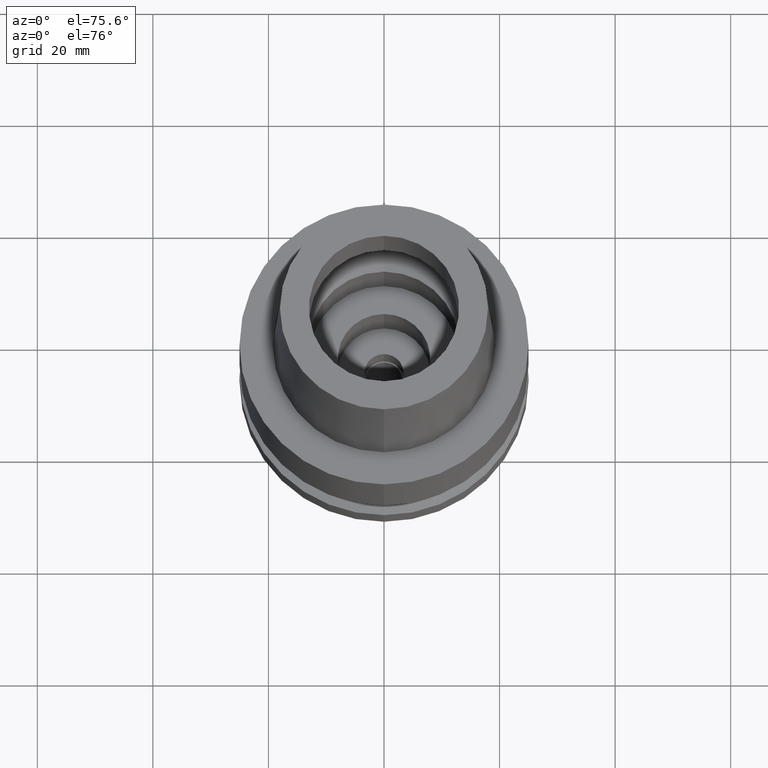
[diagram: clean part render]
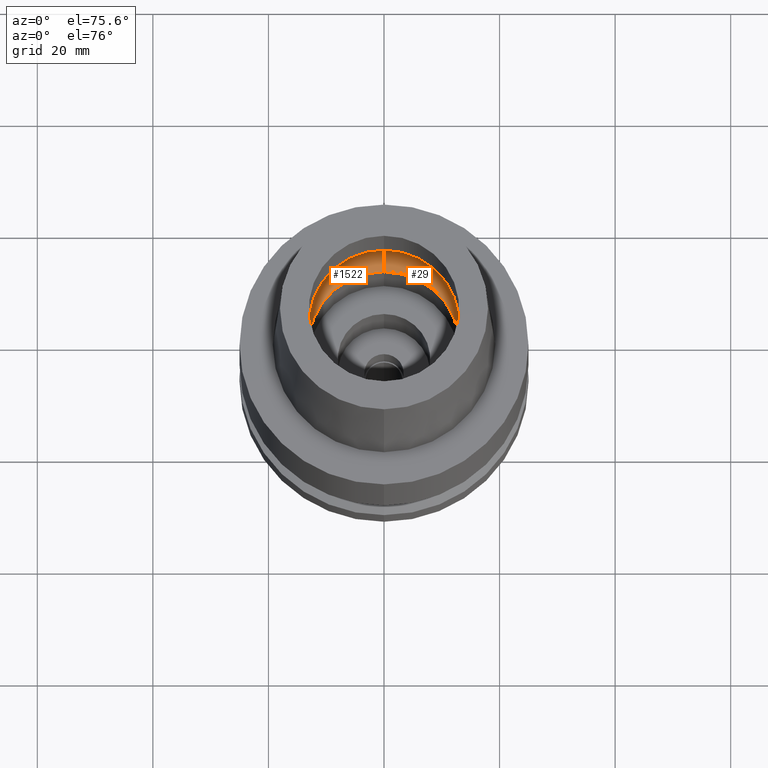
[diagram: same view with one multi-face feature highlighted, each face labeled with its STEP entity id]
A machine part, auxiliary view. The highlighted faces form ONE feature: a constant-radius fillet chain: 2 tangent blend faces with common blend radius 6 mm. The faces share edges in the B-rep.
Their STEP definitions:
[1] entity #1522 (Torus):
#5 = DIRECTION ( 'NONE',  ( 0.0000000000000000000, -0.5000000000000169864, -0.8660254037844289376 ) ) ;
#110 = CARTESIAN_POINT ( 'NONE',  ( 0.0000000000000000000, -16.00000000000000000, 5.245999999999999552 ) ) ;
#196 = EDGE_CURVE ( 'NONE', #441, #302, #563, .T. ) ;
#224 = CARTESIAN_POINT ( 'NONE',  ( 0.0000000000000000000, 0.0000000000000000000, 0.04984757729338000487 ) ) ;
#238 = AXIS2_PLACEMENT_3D ( 'NONE', #1676, #2503, #2492 ) ;
#284 = CIRCLE ( 'NONE', #547, 6.000000000000000000 ) ;
#302 = VERTEX_POINT ( 'NONE', #2594 ) ;
#306 = CARTESIAN_POINT ( 'NONE',  ( 0.0000000000000000000, 0.0000000000000000000, 5.245999999999999552 ) ) ;
#375 = ORIENTED_EDGE ( 'NONE', *, *, #196, .F. ) ;
#393 = CARTESIAN_POINT ( 'NONE',  ( 0.0000000000000000000, 13.00000000000000000, 0.04984757729338999688 ) ) ;
#441 = VERTEX_POINT ( 'NONE', #393 ) ;
#547 = AXIS2_PLACEMENT_3D ( 'NONE', #2291, #1461, #5 ) ;
#563 = CIRCLE ( 'NONE', #2049, 13.00000000000000000 ) ;
#590 = CARTESIAN_POINT ( 'NONE',  ( 0.0000000000000000000, 10.00000000000000000, 5.245999999999999552 ) ) ;
#663 = AXIS2_PLACEMENT_3D ( 'NONE', #590, #1011, #2466 ) ;
#879 = CIRCLE ( 'NONE', #663, 6.000000000000000000 ) ;
#880 = ORIENTED_EDGE ( 'NONE', *, *, #2631, .F. ) ;
#972 = CIRCLE ( 'NONE', #238, 16.00000000000000000 ) ;
#1011 = DIRECTION ( 'NONE',  ( 1.000000000000000000, 0.0000000000000000000, 0.0000000000000000000 ) ) ;
#1056 = TOROIDAL_SURFACE ( 'NONE', #2523, 10.00000000000000000, 6.000000000000000000 ) ;
#1057 = VERTEX_POINT ( 'NONE', #110 ) ;
#1461 = DIRECTION ( 'NONE',  ( -1.000000000000000000, 0.0000000000000000000, 0.0000000000000000000 ) ) ;
#1516 = FACE_OUTER_BOUND ( 'NONE', #2328, .T. ) ;
#1522 = ADVANCED_FACE ( 'NONE', ( #1516 ), #1056, .F. ) ;
#1676 = CARTESIAN_POINT ( 'NONE',  ( 0.0000000000000000000, 0.0000000000000000000, 5.245999999999999552 ) ) ;
#1942 = DIRECTION ( 'NONE',  ( 0.0000000000000000000, 1.000000000000000000, 0.0000000000000000000 ) ) ;
#2049 = AXIS2_PLACEMENT_3D ( 'NONE', #224, #2151, #1942 ) ;
#2066 = CARTESIAN_POINT ( 'NONE',  ( 0.0000000000000000000, 16.00000000000000000, 5.245999999999999552 ) ) ;
#2144 = DIRECTION ( 'NONE',  ( 0.0000000000000000000, 1.000000000000000000, 0.0000000000000000000 ) ) ;
#2151 = DIRECTION ( 'NONE',  ( 0.0000000000000000000, 0.0000000000000000000, 1.000000000000000000 ) ) ;
#2291 = CARTESIAN_POINT ( 'NONE',  ( 0.0000000000000000000, -10.00000000000000000, 5.245999999999999552 ) ) ;
#2328 = EDGE_LOOP ( 'NONE', ( #880, #2664, #375, #2542 ) ) ;
#2466 = DIRECTION ( 'NONE',  ( 0.0000000000000000000, 0.5000000000000169864, -0.8660254037844289376 ) ) ;
#2491 = EDGE_CURVE ( 'NONE', #441, #2510, #879, .T. ) ;
#2492 = DIRECTION ( 'NONE',  ( 0.0000000000000000000, -1.000000000000000000, 0.0000000000000000000 ) ) ;
#2503 = DIRECTION ( 'NONE',  ( 0.0000000000000000000, 0.0000000000000000000, -1.000000000000000000 ) ) ;
#2510 = VERTEX_POINT ( 'NONE', #2066 ) ;
#2523 = AXIS2_PLACEMENT_3D ( 'NONE', #306, #2576, #2144 ) ;
#2540 = EDGE_CURVE ( 'NONE', #302, #1057, #284, .T. ) ;
#2542 = ORIENTED_EDGE ( 'NONE', *, *, #2491, .T. ) ;
#2576 = DIRECTION ( 'NONE',  ( 0.0000000000000000000, 0.0000000000000000000, 1.000000000000000000 ) ) ;
#2594 = CARTESIAN_POINT ( 'NONE',  ( 0.0000000000000000000, -13.00000000000000000, 0.04984757729338000487 ) ) ;
#2631 = EDGE_CURVE ( 'NONE', #1057, #2510, #972, .T. ) ;
#2664 = ORIENTED_EDGE ( 'NONE', *, *, #2540, .F. ) ;
[2] entity #29 (Torus):
#5 = DIRECTION ( 'NONE',  ( 0.0000000000000000000, -0.5000000000000169864, -0.8660254037844289376 ) ) ;
#29 = ADVANCED_FACE ( 'NONE', ( #371 ), #353, .F. ) ;
#110 = CARTESIAN_POINT ( 'NONE',  ( 0.0000000000000000000, -16.00000000000000000, 5.245999999999999552 ) ) ;
#284 = CIRCLE ( 'NONE', #547, 6.000000000000000000 ) ;
#302 = VERTEX_POINT ( 'NONE', #2594 ) ;
#346 = EDGE_CURVE ( 'NONE', #2510, #1057, #1214, .T. ) ;
#353 = TOROIDAL_SURFACE ( 'NONE', #826, 10.00000000000000000, 6.000000000000000000 ) ;
#371 = FACE_OUTER_BOUND ( 'NONE', #1815, .T. ) ;
#393 = CARTESIAN_POINT ( 'NONE',  ( 0.0000000000000000000, 13.00000000000000000, 0.04984757729338999688 ) ) ;
#441 = VERTEX_POINT ( 'NONE', #393 ) ;
#508 = DIRECTION ( 'NONE',  ( 0.0000000000000000000, 0.0000000000000000000, 1.000000000000000000 ) ) ;
#547 = AXIS2_PLACEMENT_3D ( 'NONE', #2291, #1461, #5 ) ;
#590 = CARTESIAN_POINT ( 'NONE',  ( 0.0000000000000000000, 10.00000000000000000, 5.245999999999999552 ) ) ;
#602 = ORIENTED_EDGE ( 'NONE', *, *, #2540, .T. ) ;
#622 = DIRECTION ( 'NONE',  ( 0.0000000000000000000, 1.000000000000000000, 0.0000000000000000000 ) ) ;
#663 = AXIS2_PLACEMENT_3D ( 'NONE', #590, #1011, #2466 ) ;
#764 = ORIENTED_EDGE ( 'NONE', *, *, #346, .F. ) ;
#826 = AXIS2_PLACEMENT_3D ( 'NONE', #2444, #1219, #622 ) ;
#879 = CIRCLE ( 'NONE', #663, 6.000000000000000000 ) ;
#886 = ORIENTED_EDGE ( 'NONE', *, *, #1937, .F. ) ;
#1011 = DIRECTION ( 'NONE',  ( 1.000000000000000000, 0.0000000000000000000, 0.0000000000000000000 ) ) ;
#1057 = VERTEX_POINT ( 'NONE', #110 ) ;
#1214 = CIRCLE ( 'NONE', #2604, 16.00000000000000000 ) ;
#1219 = DIRECTION ( 'NONE',  ( 0.0000000000000000000, 0.0000000000000000000, 1.000000000000000000 ) ) ;
#1461 = DIRECTION ( 'NONE',  ( -1.000000000000000000, 0.0000000000000000000, 0.0000000000000000000 ) ) ;
#1551 = ORIENTED_EDGE ( 'NONE', *, *, #2491, .F. ) ;
#1555 = CARTESIAN_POINT ( 'NONE',  ( 0.0000000000000000000, 0.0000000000000000000, 0.04984757729338000487 ) ) ;
#1576 = AXIS2_PLACEMENT_3D ( 'NONE', #1555, #508, #2587 ) ;
#1586 = DIRECTION ( 'NONE',  ( 0.0000000000000000000, 0.0000000000000000000, -1.000000000000000000 ) ) ;
#1815 = EDGE_LOOP ( 'NONE', ( #886, #602, #764, #1551 ) ) ;
#1937 = EDGE_CURVE ( 'NONE', #302, #441, #2314, .T. ) ;
#1999 = DIRECTION ( 'NONE',  ( 0.0000000000000000000, 1.000000000000000000, 0.0000000000000000000 ) ) ;
#2066 = CARTESIAN_POINT ( 'NONE',  ( 0.0000000000000000000, 16.00000000000000000, 5.245999999999999552 ) ) ;
#2291 = CARTESIAN_POINT ( 'NONE',  ( 0.0000000000000000000, -10.00000000000000000, 5.245999999999999552 ) ) ;
#2314 = CIRCLE ( 'NONE', #1576, 13.00000000000000000 ) ;
#2444 = CARTESIAN_POINT ( 'NONE',  ( 0.0000000000000000000, 0.0000000000000000000, 5.245999999999999552 ) ) ;
#2466 = DIRECTION ( 'NONE',  ( 0.0000000000000000000, 0.5000000000000169864, -0.8660254037844289376 ) ) ;
#2491 = EDGE_CURVE ( 'NONE', #441, #2510, #879, .T. ) ;
#2510 = VERTEX_POINT ( 'NONE', #2066 ) ;
#2540 = EDGE_CURVE ( 'NONE', #302, #1057, #284, .T. ) ;
#2564 = CARTESIAN_POINT ( 'NONE',  ( 0.0000000000000000000, 0.0000000000000000000, 5.245999999999999552 ) ) ;
#2587 = DIRECTION ( 'NONE',  ( 0.0000000000000000000, -1.000000000000000000, 0.0000000000000000000 ) ) ;
#2594 = CARTESIAN_POINT ( 'NONE',  ( 0.0000000000000000000, -13.00000000000000000, 0.04984757729338000487 ) ) ;
#2604 = AXIS2_PLACEMENT_3D ( 'NONE', #2564, #1586, #1999 ) ;